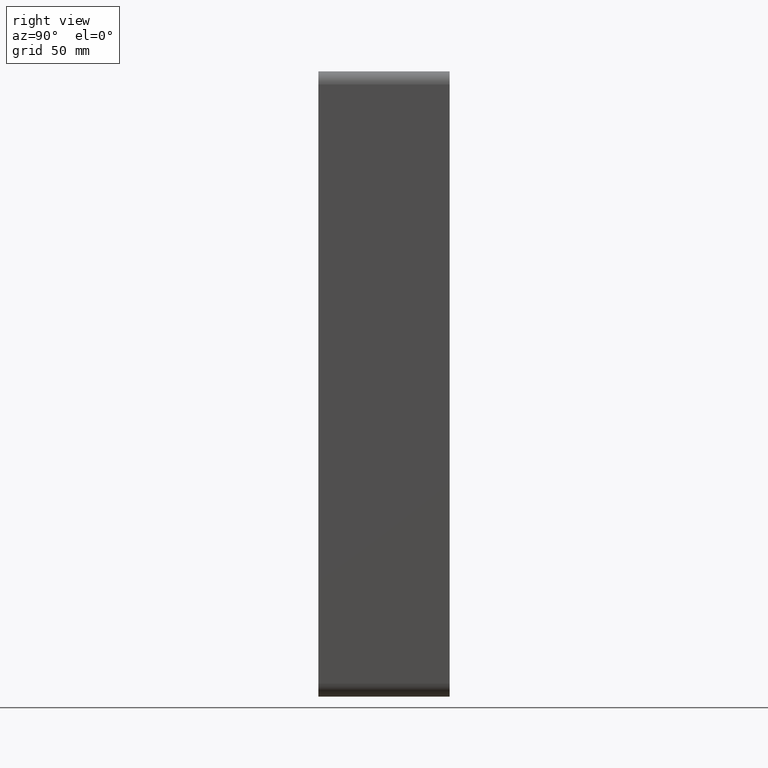
[diagram: clean part render]
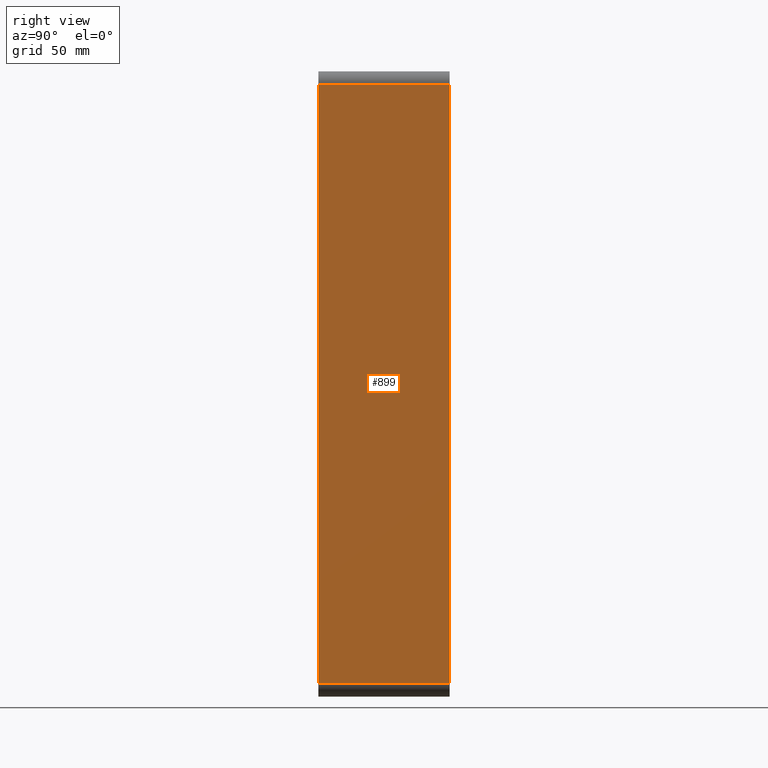
[diagram: same view with one face highlighted and labeled with its STEP entity id]
A machine part, right view. The second image highlights one B-rep face of the part: STEP entity #899.
In plain terms, the highlighted planar face has unit normal (1, 0, 0).
Its self-contained STEP definition (entity closure, byte-faithful):
#362=CARTESIAN_POINT('',(135.5,97.0,228.0));
#363=VERTEX_POINT('',#362);
#371=CARTESIAN_POINT('',(135.5,97.0,-228.0));
#372=VERTEX_POINT('',#371);
#373=CARTESIAN_POINT('',(135.5,97.0,228.0));
#374=DIRECTION('',(0.0,0.0,-1.0));
#375=VECTOR('',#374,456.0);
#376=LINE('',#373,#375);
#377=EDGE_CURVE('',#363,#372,#376,.T.);
#693=CARTESIAN_POINT('',(135.5,-3.0,-228.0));
#694=VERTEX_POINT('',#693);
#702=CARTESIAN_POINT('',(135.5,-3.0,228.0));
#703=VERTEX_POINT('',#702);
#704=CARTESIAN_POINT('',(135.5,-3.0,-228.0));
#705=DIRECTION('',(0.0,0.0,1.0));
#706=VECTOR('',#705,456.0);
#707=LINE('',#704,#706);
#708=EDGE_CURVE('',#694,#703,#707,.T.);
#797=CARTESIAN_POINT('',(135.5,97.0,-228.0));
#798=DIRECTION('',(0.0,-1.0,0.0));
#799=VECTOR('',#798,100.0);
#800=LINE('',#797,#799);
#801=EDGE_CURVE('',#372,#694,#800,.T.);
#814=CARTESIAN_POINT('',(135.5,-3.0,228.0));
#815=DIRECTION('',(0.0,1.0,0.0));
#816=VECTOR('',#815,100.0);
#817=LINE('',#814,#816);
#818=EDGE_CURVE('',#703,#363,#817,.T.);
#888=CARTESIAN_POINT('',(135.5,0.0,238.0));
#889=DIRECTION('',(1.0,0.0,0.0));
#890=DIRECTION('',(0.0,0.0,-1.0));
#891=AXIS2_PLACEMENT_3D('',#888,#889,#890);
#892=PLANE('',#891);
#893=ORIENTED_EDGE('',*,*,#801,.F.);
#894=ORIENTED_EDGE('',*,*,#377,.F.);
#895=ORIENTED_EDGE('',*,*,#818,.F.);
#896=ORIENTED_EDGE('',*,*,#708,.F.);
#897=EDGE_LOOP('',(#893,#894,#895,#896));
#898=FACE_OUTER_BOUND('',#897,.T.);
#899=ADVANCED_FACE('',(#898),#892,.T.);